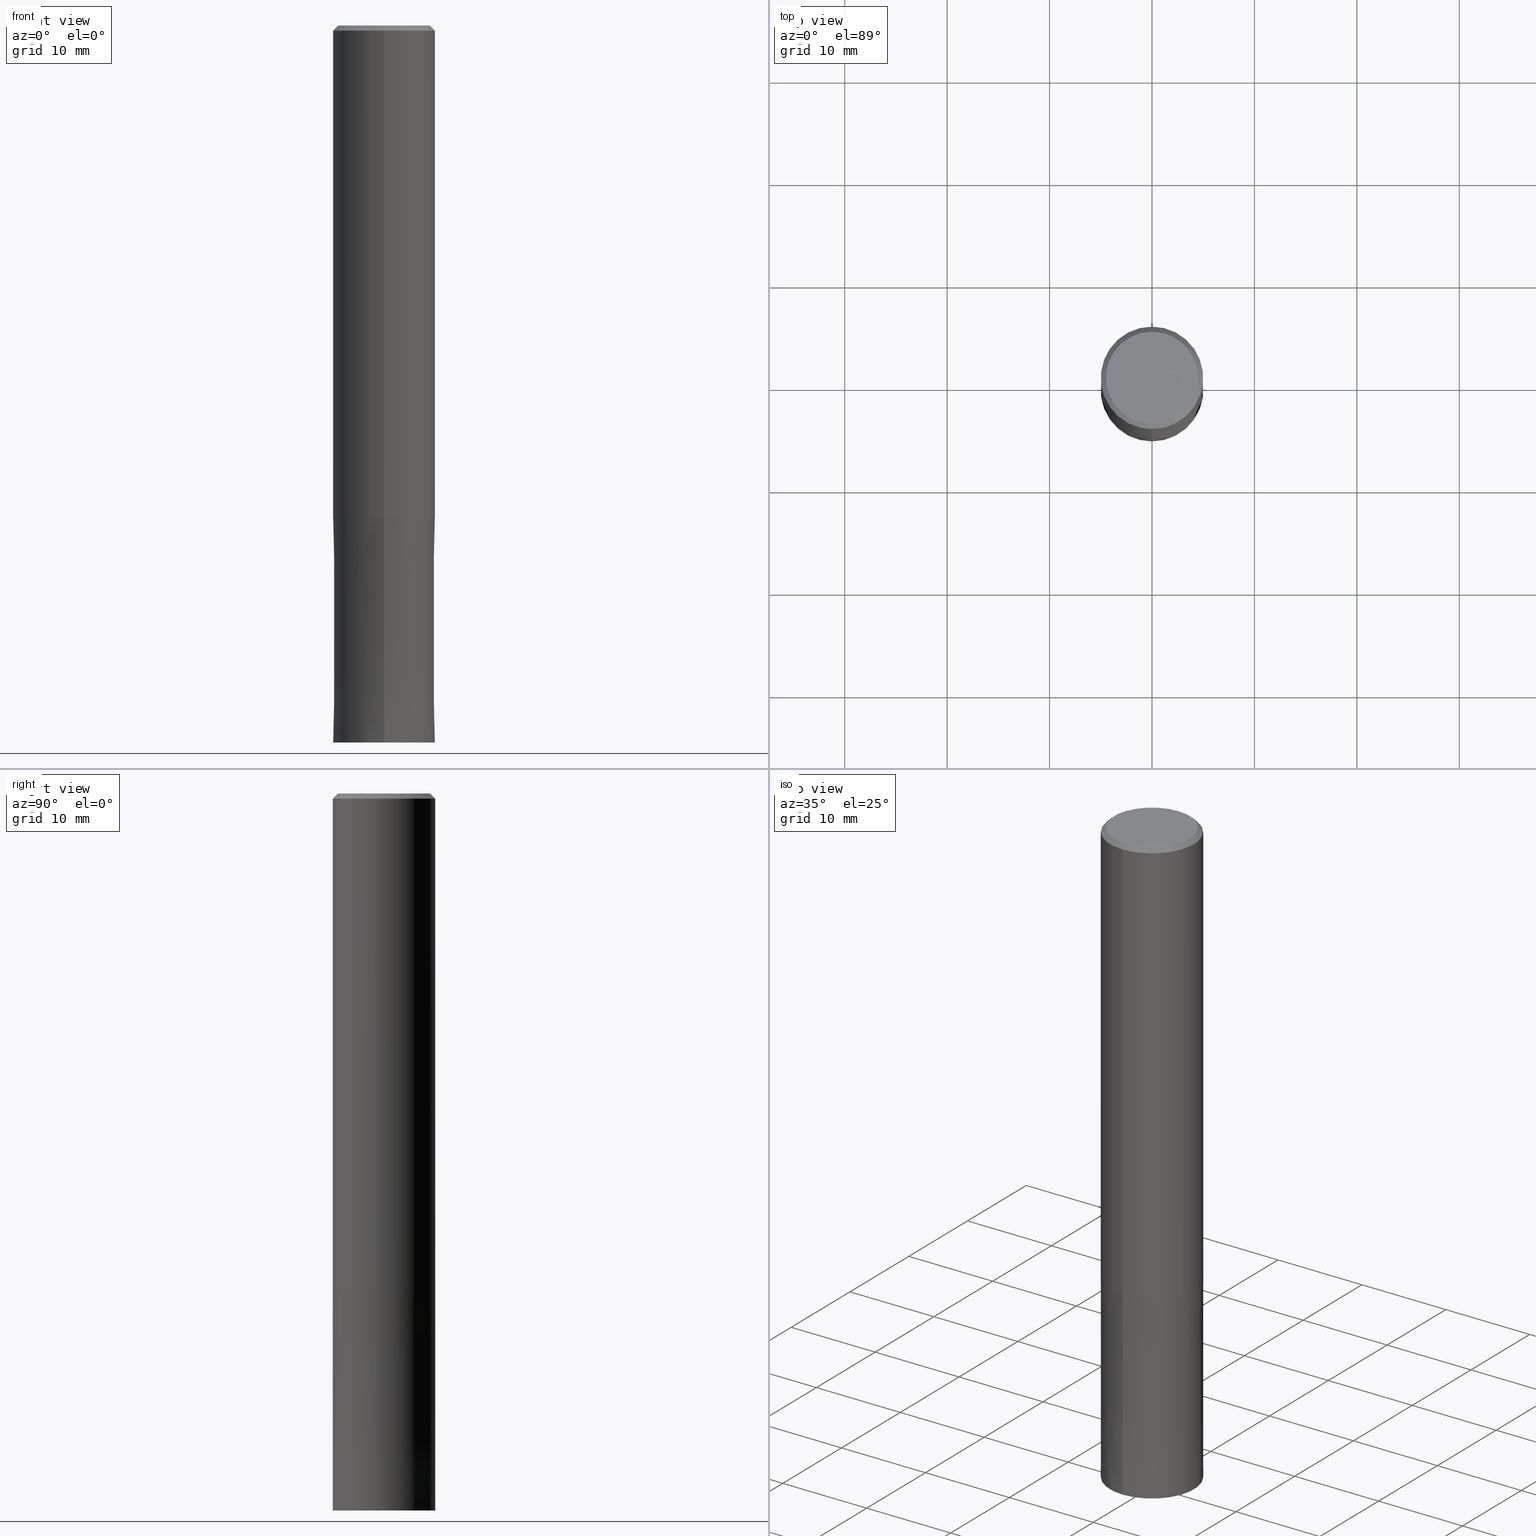
[diagram: canonical four-view strip — front | top / right | iso, engineering-drawing reading convention]
A machine part, canonical four-view strip (front | top / right | iso — engineering-drawing reading convention). The complete STEP part file that produces these views, byte-faithful:
ISO-10303-21;
HEADER;
FILE_DESCRIPTION(('no description'),'unknown implementation level');
FILE_NAME('HMS6100-2200-Huellk.stp','  ',('CIMSOURCE GmbH'),('CADClick - KiM GmbH - www.kimweb.de'),'unknown preprocess','ACIS','unknown authorization');
FILE_SCHEMA(('automotive_design'));
ENDSEC;
DATA;
#1=MECHANICAL_DESIGN_GEOMETRIC_PRESENTATION_REPRESENTATION(' ',(#14,#15,#16,#17,#18,#19,#20,#21,#22,#23,#24,#25,#26,#27,#28,#29,#30,#31,#32,#33,#34,#35,#36,#37,#38,#39,#40,#41,#42,#43,#44,#45,#46,#47,#48,#49,#50,#51,#52,#53,#54,#55,#56,#57,#58,#59,#60,#61,#62,#63,#64,#65,#66,#67,#68,#69,#70,#71,#72,#73,#74,#75,#76),#10);
#2=PRODUCT_DEFINITION_CONTEXT('',#77,'design');
#3=APPLICATION_PROTOCOL_DEFINITION('INTERNATIONAL STANDARD','automotive_design',1994,#77);
#4=PRODUCT_CATEGORY_RELATIONSHIP('NONE','NONE',#78,#79);
#5=SHAPE_DEFINITION_REPRESENTATION(#80,#81);
#6=PRODUCT_DEFINITION_CONTEXT('',#82,'design');
#7=APPLICATION_PROTOCOL_DEFINITION('INTERNATIONAL STANDARD','automotive_design',1994,#82);
#8=PRODUCT_CATEGORY_RELATIONSHIP('NONE','NONE',#83,#84);
#9=SHAPE_DEFINITION_REPRESENTATION(#85,#86);
#10= (GEOMETRIC_REPRESENTATION_CONTEXT(3)GLOBAL_UNCERTAINTY_ASSIGNED_CONTEXT((#89))GLOBAL_UNIT_ASSIGNED_CONTEXT((#91,#92,#93))REPRESENTATION_CONTEXT('NONE','WORKSPACE'));
#14=STYLED_ITEM('',(#95),#96);
#15=STYLED_ITEM('',(#97),#98);
#16=STYLED_ITEM('',(#99),#100);
#17=STYLED_ITEM('',(#101),#102);
#18=STYLED_ITEM('',(#103),#104);
#19=STYLED_ITEM('',(#105),#106);
#20=STYLED_ITEM('',(#107),#108);
#21=STYLED_ITEM('',(#109),#110);
#22=STYLED_ITEM('',(#111),#112);
#23=STYLED_ITEM('',(#113),#114);
#24=STYLED_ITEM('',(#115),#116);
#25=STYLED_ITEM('',(#117),#118);
#26=STYLED_ITEM('',(#119),#120);
#27=STYLED_ITEM('',(#121),#122);
#28=STYLED_ITEM('',(#123),#124);
#29=STYLED_ITEM('',(#125),#126);
#30=STYLED_ITEM('',(#127),#128);
#31=STYLED_ITEM('',(#129),#130);
#32=STYLED_ITEM('',(#131),#132);
#33=STYLED_ITEM('',(#133),#134);
#34=STYLED_ITEM('',(#135),#136);
#35=STYLED_ITEM('',(#137),#138);
#36=STYLED_ITEM('',(#139),#140);
#37=STYLED_ITEM('',(#141),#142);
#38=STYLED_ITEM('',(#143),#144);
#39=STYLED_ITEM('',(#145),#146);
#40=STYLED_ITEM('',(#147),#148);
#41=STYLED_ITEM('',(#149),#150);
#42=STYLED_ITEM('',(#151),#152);
#43=STYLED_ITEM('',(#153),#154);
#44=STYLED_ITEM('',(#155),#156);
#45=STYLED_ITEM('',(#157),#158);
#46=STYLED_ITEM('',(#159),#160);
#47=STYLED_ITEM('',(#161),#162);
#48=STYLED_ITEM('',(#163),#164);
#49=STYLED_ITEM('',(#165),#166);
#50=STYLED_ITEM('',(#167),#168);
#51=STYLED_ITEM('',(#169),#170);
#52=STYLED_ITEM('',(#171),#172);
#53=STYLED_ITEM('',(#173),#174);
#54=STYLED_ITEM('',(#175),#176);
#55=STYLED_ITEM('',(#177),#178);
#56=STYLED_ITEM('',(#179),#180);
#57=STYLED_ITEM('',(#181),#182);
#58=STYLED_ITEM('',(#183),#184);
#59=STYLED_ITEM('',(#185),#186);
#60=STYLED_ITEM('',(#187),#188);
#61=STYLED_ITEM('',(#189),#190);
#62=STYLED_ITEM('',(#191),#192);
#63=STYLED_ITEM('',(#193),#194);
#64=STYLED_ITEM('',(#195),#196);
#65=STYLED_ITEM('',(#197),#198);
#66=STYLED_ITEM('',(#199),#200);
#67=STYLED_ITEM('',(#201),#202);
#68=STYLED_ITEM('',(#203),#204);
#69=STYLED_ITEM('',(#205),#206);
#70=STYLED_ITEM('',(#207),#208);
#71=STYLED_ITEM('',(#209),#210);
#72=STYLED_ITEM('',(#211),#212);
#73=STYLED_ITEM('',(#213),#214);
#74=STYLED_ITEM('',(#215),#216);
#75=STYLED_ITEM('',(#217),#218);
#76=STYLED_ITEM('',(#219),#220);
#77=APPLICATION_CONTEXT(' ');
#78=PRODUCT_CATEGORY('part','NONE');
#79=PRODUCT_RELATED_PRODUCT_CATEGORY('detail',' ',(#221));
#80=PRODUCT_DEFINITION_SHAPE('NONE','NONE',#222);
#81=ADVANCED_BREP_SHAPE_REPRESENTATION('1',(#192,#223),#10);
#82=APPLICATION_CONTEXT(' ');
#83=PRODUCT_CATEGORY('part','NONE');
#84=PRODUCT_RELATED_PRODUCT_CATEGORY('detail',' ',(#224));
#85=PRODUCT_DEFINITION_SHAPE('NONE','NONE',#225);
#86=ADVANCED_BREP_SHAPE_REPRESENTATION('2',(#96,#226),#10);
#89=UNCERTAINTY_MEASURE_WITH_UNIT(LENGTH_MEASURE(1.0E-006),#91,'','');
#91= (CONVERSION_BASED_UNIT('MILLIMETRE',#229)LENGTH_UNIT()NAMED_UNIT(#232));
#92= (NAMED_UNIT(#234)PLANE_ANGLE_UNIT()SI_UNIT($,.RADIAN.));
#93= (NAMED_UNIT(#234)SOLID_ANGLE_UNIT()SI_UNIT($,.STERADIAN.));
#95=PRESENTATION_STYLE_ASSIGNMENT((#240));
#96=MANIFOLD_SOLID_BREP('2',#241);
#97=PRESENTATION_STYLE_ASSIGNMENT((#242));
#98=VERTEX_POINT('',#243);
#99=PRESENTATION_STYLE_ASSIGNMENT((#244));
#100=EDGE_CURVE('',#172,#166,#245,.T.);
#101=PRESENTATION_STYLE_ASSIGNMENT((#246));
#102=EDGE_CURVE('',#160,#210,#247,.T.);
#103=PRESENTATION_STYLE_ASSIGNMENT((#248));
#104=ADVANCED_FACE('',(#249),#250,.T.);
#105=PRESENTATION_STYLE_ASSIGNMENT((#251));
#106=ADVANCED_FACE('',(#252),#253,.T.);
#107=PRESENTATION_STYLE_ASSIGNMENT((#254));
#108=VERTEX_POINT('',#255);
#109=PRESENTATION_STYLE_ASSIGNMENT((#256));
#110=ADVANCED_FACE('',(#257,#258),#259,.T.);
#111=PRESENTATION_STYLE_ASSIGNMENT((#260));
#112=EDGE_CURVE('',#98,#122,#261,.T.);
#113=PRESENTATION_STYLE_ASSIGNMENT((#262));
#114=EDGE_CURVE('',#174,#210,#263,.T.);
#115=PRESENTATION_STYLE_ASSIGNMENT((#264));
#116=EDGE_CURVE('',#148,#146,#265,.T.);
#117=PRESENTATION_STYLE_ASSIGNMENT((#266));
#118=EDGE_CURVE('',#174,#206,#267,.T.);
#119=PRESENTATION_STYLE_ASSIGNMENT((#268));
#120=EDGE_CURVE('',#186,#166,#269,.T.);
#121=PRESENTATION_STYLE_ASSIGNMENT((#270));
#122=VERTEX_POINT('',#271);
#123=PRESENTATION_STYLE_ASSIGNMENT((#272));
#124=ADVANCED_FACE('',(#273),#274,.T.);
#125=PRESENTATION_STYLE_ASSIGNMENT((#275));
#126=EDGE_CURVE('',#160,#206,#276,.T.);
#127=PRESENTATION_STYLE_ASSIGNMENT((#277));
#128=ADVANCED_FACE('',(#278),#279,.T.);
#129=PRESENTATION_STYLE_ASSIGNMENT((#280));
#130=VERTEX_POINT('',#281);
#131=PRESENTATION_STYLE_ASSIGNMENT((#282));
#132=ADVANCED_FACE('',(#283),#284,.F.);
#133=PRESENTATION_STYLE_ASSIGNMENT((#285));
#134=EDGE_CURVE('',#208,#186,#286,.T.);
#135=PRESENTATION_STYLE_ASSIGNMENT((#287));
#136=EDGE_CURVE('',#202,#108,#288,.T.);
#137=PRESENTATION_STYLE_ASSIGNMENT((#289));
#138=EDGE_CURVE('',#146,#172,#290,.T.);
#139=PRESENTATION_STYLE_ASSIGNMENT((#291));
#140=ADVANCED_FACE('',(#292),#293,.T.);
#141=PRESENTATION_STYLE_ASSIGNMENT((#294));
#142=ADVANCED_FACE('',(#295),#296,.T.);
#143=PRESENTATION_STYLE_ASSIGNMENT((#297));
#144=EDGE_CURVE('',#172,#208,#298,.T.);
#145=PRESENTATION_STYLE_ASSIGNMENT((#299));
#146=VERTEX_POINT('',#300);
#147=PRESENTATION_STYLE_ASSIGNMENT((#301));
#148=VERTEX_POINT('',#302);
#149=PRESENTATION_STYLE_ASSIGNMENT((#303));
#150=ADVANCED_FACE('',(#304),#305,.F.);
#151=PRESENTATION_STYLE_ASSIGNMENT((#306));
#152=EDGE_CURVE('',#122,#216,#307,.T.);
#153=PRESENTATION_STYLE_ASSIGNMENT((#308));
#154=ADVANCED_FACE('',(#309,#310),#311,.T.);
#155=PRESENTATION_STYLE_ASSIGNMENT((#312));
#156=EDGE_CURVE('',#98,#188,#313,.T.);
#157=PRESENTATION_STYLE_ASSIGNMENT((#314));
#158=ADVANCED_FACE('',(#315,#316),#317,.T.);
#159=PRESENTATION_STYLE_ASSIGNMENT((#318));
#160=VERTEX_POINT('',#319);
#161=PRESENTATION_STYLE_ASSIGNMENT((#320));
#162=EDGE_CURVE('',#130,#202,#321,.T.);
#163=PRESENTATION_STYLE_ASSIGNMENT((#322));
#164=EDGE_CURVE('',#210,#160,#323,.T.);
#165=PRESENTATION_STYLE_ASSIGNMENT((#324));
#166=VERTEX_POINT('',#325);
#167=PRESENTATION_STYLE_ASSIGNMENT((#326));
#168=EDGE_CURVE('',#166,#172,#327,.T.);
#169=PRESENTATION_STYLE_ASSIGNMENT((#328));
#170=ADVANCED_FACE('',(#329),#330,.T.);
#171=PRESENTATION_STYLE_ASSIGNMENT((#331));
#172=VERTEX_POINT('',#332);
#173=PRESENTATION_STYLE_ASSIGNMENT((#333));
#174=VERTEX_POINT('',#334);
#175=PRESENTATION_STYLE_ASSIGNMENT((#335));
#176=EDGE_CURVE('',#108,#202,#336,.T.);
#177=PRESENTATION_STYLE_ASSIGNMENT((#337));
#178=ADVANCED_FACE('',(#338),#339,.T.);
#179=PRESENTATION_STYLE_ASSIGNMENT((#340));
#180=ADVANCED_FACE('',(#341),#342,.T.);
#181=PRESENTATION_STYLE_ASSIGNMENT((#343));
#182=EDGE_CURVE('',#166,#148,#344,.T.);
#183=PRESENTATION_STYLE_ASSIGNMENT((#345));
#184=EDGE_CURVE('',#216,#122,#346,.T.);
#185=PRESENTATION_STYLE_ASSIGNMENT((#347));
#186=VERTEX_POINT('',#348);
#187=PRESENTATION_STYLE_ASSIGNMENT((#349));
#188=VERTEX_POINT('',#350);
#189=PRESENTATION_STYLE_ASSIGNMENT((#351));
#190=EDGE_CURVE('',#108,#198,#352,.T.);
#191=PRESENTATION_STYLE_ASSIGNMENT((#353));
#192=MANIFOLD_SOLID_BREP('1',#354);
#193=PRESENTATION_STYLE_ASSIGNMENT((#355));
#194=EDGE_CURVE('',#186,#208,#356,.T.);
#195=PRESENTATION_STYLE_ASSIGNMENT((#357));
#196=EDGE_CURVE('',#188,#98,#358,.T.);
#197=PRESENTATION_STYLE_ASSIGNMENT((#359));
#198=VERTEX_POINT('',#360);
#199=PRESENTATION_STYLE_ASSIGNMENT((#361));
#200=EDGE_CURVE('',#198,#130,#362,.T.);
#201=PRESENTATION_STYLE_ASSIGNMENT((#363));
#202=VERTEX_POINT('',#364);
#203=PRESENTATION_STYLE_ASSIGNMENT((#365));
#204=EDGE_CURVE('',#146,#148,#366,.T.);
#205=PRESENTATION_STYLE_ASSIGNMENT((#367));
#206=VERTEX_POINT('',#368);
#207=PRESENTATION_STYLE_ASSIGNMENT((#369));
#208=VERTEX_POINT('',#370);
#209=PRESENTATION_STYLE_ASSIGNMENT((#371));
#210=VERTEX_POINT('',#372);
#211=PRESENTATION_STYLE_ASSIGNMENT((#373));
#212=EDGE_CURVE('',#206,#174,#374,.T.);
#213=PRESENTATION_STYLE_ASSIGNMENT((#375));
#214=ADVANCED_FACE('',(#376),#377,.T.);
#215=PRESENTATION_STYLE_ASSIGNMENT((#378));
#216=VERTEX_POINT('',#379);
#217=PRESENTATION_STYLE_ASSIGNMENT((#380));
#218=EDGE_CURVE('',#216,#188,#381,.T.);
#219=PRESENTATION_STYLE_ASSIGNMENT((#382));
#220=EDGE_CURVE('',#130,#198,#383,.T.);
#221=PRODUCT('1','1','PART-1-DESC',(#384));
#222=PRODUCT_DEFINITION('NONE','NONE',#385,#2);
#223=AXIS2_PLACEMENT_3D('',#386,#387,#388);
#224=PRODUCT('2','2','PART-2-DESC',(#389));
#225=PRODUCT_DEFINITION('NONE','NONE',#390,#6);
#226=AXIS2_PLACEMENT_3D('',#391,#392,#393);
#229=LENGTH_MEASURE_WITH_UNIT(LENGTH_MEASURE(1.0),#394);
#232=DIMENSIONAL_EXPONENTS(1.0,0.0,0.0,0.0,0.0,0.0,0.0);
#234=DIMENSIONAL_EXPONENTS(0.0,0.0,0.0,0.0,0.0,0.0,0.0);
#240=SURFACE_STYLE_USAGE(.BOTH.,#395);
#241=CLOSED_SHELL('',(#150,#124,#154,#128,#158,#132));
#242=POINT_STYLE(' ',#396,POSITIVE_LENGTH_MEASURE(1.0E-006),#397);
#243=CARTESIAN_POINT('',(2.75536429610035E-016,-2.25,-69.8));
#244=CURVE_STYLE('',#398,POSITIVE_LENGTH_MEASURE(1.0E-006),#399);
#245=CIRCLE('',#400,5.0);
#246=CURVE_STYLE('',#401,POSITIVE_LENGTH_MEASURE(1.0E-006),#402);
#247=CIRCLE('',#403,5.0);
#248=SURFACE_STYLE_USAGE(.BOTH.,#404);
#249=FACE_OUTER_BOUND('',#405,.T.);
#250=PLANE('',#406);
#251=SURFACE_STYLE_USAGE(.BOTH.,#407);
#252=FACE_OUTER_BOUND('',#408,.T.);
#253=CYLINDRICAL_SURFACE('',#409,2.25);
#254=POINT_STYLE(' ',#410,POSITIVE_LENGTH_MEASURE(1.0E-006),#411);
#255=CARTESIAN_POINT('',(0.0,2.25,-48.0));
#256=SURFACE_STYLE_USAGE(.BOTH.,#412);
#257=FACE_OUTER_BOUND('',#413,.T.);
#258=FACE_BOUND('',#414,.T.);
#259=PLANE('',#415);
#260=CURVE_STYLE('',#416,POSITIVE_LENGTH_MEASURE(1.0E-006),#417);
#261=LINE('',#418,#419);
#262=CURVE_STYLE('',#420,POSITIVE_LENGTH_MEASURE(1.0E-006),#421);
#263=LINE('',#422,#423);
#264=CURVE_STYLE('',#424,POSITIVE_LENGTH_MEASURE(1.0E-006),#425);
#265=CIRCLE('',#426,5.0);
#266=CURVE_STYLE('',#427,POSITIVE_LENGTH_MEASURE(1.0E-006),#428);
#267=CIRCLE('',#429,4.9999);
#268=CURVE_STYLE('',#430,POSITIVE_LENGTH_MEASURE(1.0E-006),#431);
#269=LINE('',#432,#433);
#270=POINT_STYLE(' ',#434,POSITIVE_LENGTH_MEASURE(1.0E-006),#435);
#271=CARTESIAN_POINT('',(2.75536429610035E-016,-2.25,-48.0));
#272=SURFACE_STYLE_USAGE(.BOTH.,#436);
#273=FACE_OUTER_BOUND('',#437,.T.);
#274=CONICAL_SURFACE('',#438,4.99995,4.54545454541265E-006);
#275=CURVE_STYLE('',#439,POSITIVE_LENGTH_MEASURE(1.0E-006),#440);
#276=LINE('',#441,#442);
#277=SURFACE_STYLE_USAGE(.BOTH.,#443);
#278=FACE_OUTER_BOUND('',#444,.T.);
#279=CONICAL_SURFACE('',#445,4.99995,4.54545454541265E-006);
#280=POINT_STYLE(' ',#446,POSITIVE_LENGTH_MEASURE(1.0E-006),#447);
#281=CARTESIAN_POINT('',(2.75536429610035E-016,-2.25,-70.0));
#282=SURFACE_STYLE_USAGE(.BOTH.,#448);
#283=FACE_OUTER_BOUND('',#449,.T.);
#284=CYLINDRICAL_SURFACE('',#450,2.25);
#285=CURVE_STYLE('',#451,POSITIVE_LENGTH_MEASURE(1.0E-006),#452);
#286=CIRCLE('',#453,4.5);
#287=CURVE_STYLE('',#454,POSITIVE_LENGTH_MEASURE(1.0E-006),#455);
#288=CIRCLE('',#456,2.25);
#289=CURVE_STYLE('',#457,POSITIVE_LENGTH_MEASURE(1.0E-006),#458);
#290=LINE('',#459,#460);
#291=SURFACE_STYLE_USAGE(.BOTH.,#461);
#292=FACE_OUTER_BOUND('',#462,.T.);
#293=PLANE('',#463);
#294=SURFACE_STYLE_USAGE(.BOTH.,#464);
#295=FACE_OUTER_BOUND('',#465,.T.);
#296=CONICAL_SURFACE('',#466,4.75,0.785398163397448);
#297=CURVE_STYLE('',#467,POSITIVE_LENGTH_MEASURE(1.0E-006),#468);
#298=LINE('',#469,#470);
#299=POINT_STYLE(' ',#471,POSITIVE_LENGTH_MEASURE(1.0E-006),#472);
#300=CARTESIAN_POINT('',(6.12303176911189E-016,-5.0,-48.0));
#301=POINT_STYLE(' ',#473,POSITIVE_LENGTH_MEASURE(1.0E-006),#474);
#302=CARTESIAN_POINT('',(0.0,5.0,-48.0));
#303=SURFACE_STYLE_USAGE(.BOTH.,#475);
#304=FACE_OUTER_BOUND('',#476,.T.);
#305=CYLINDRICAL_SURFACE('',#477,2.25);
#306=CURVE_STYLE('',#478,POSITIVE_LENGTH_MEASURE(1.0E-006),#479);
#307=CIRCLE('',#480,2.25);
#308=SURFACE_STYLE_USAGE(.BOTH.,#481);
#309=FACE_OUTER_BOUND('',#482,.T.);
#310=FACE_BOUND('',#483,.T.);
#311=PLANE('',#484);
#312=CURVE_STYLE('',#485,POSITIVE_LENGTH_MEASURE(1.0E-006),#486);
#313=CIRCLE('',#487,2.25);
#314=SURFACE_STYLE_USAGE(.BOTH.,#488);
#315=FACE_OUTER_BOUND('',#489,.T.);
#316=FACE_BOUND('',#490,.T.);
#317=PLANE('',#491);
#318=POINT_STYLE(' ',#492,POSITIVE_LENGTH_MEASURE(1.0E-006),#493);
#319=CARTESIAN_POINT('',(6.12303176911189E-016,-5.0,-70.0));
#320=CURVE_STYLE('',#494,POSITIVE_LENGTH_MEASURE(1.0E-006),#495);
#321=LINE('',#496,#497);
#322=CURVE_STYLE('',#498,POSITIVE_LENGTH_MEASURE(1.0E-006),#499);
#323=CIRCLE('',#500,5.0);
#324=POINT_STYLE(' ',#501,POSITIVE_LENGTH_MEASURE(1.0E-006),#502);
#325=CARTESIAN_POINT('',(0.0,5.0,-0.5));
#326=CURVE_STYLE('',#503,POSITIVE_LENGTH_MEASURE(1.0E-006),#504);
#327=CIRCLE('',#505,5.0);
#328=SURFACE_STYLE_USAGE(.BOTH.,#506);
#329=FACE_OUTER_BOUND('',#507,.T.);
#330=CYLINDRICAL_SURFACE('',#508,5.0);
#331=POINT_STYLE(' ',#509,POSITIVE_LENGTH_MEASURE(1.0E-006),#510);
#332=CARTESIAN_POINT('',(6.12303176911189E-016,-5.0,-0.5));
#333=POINT_STYLE(' ',#511,POSITIVE_LENGTH_MEASURE(1.0E-006),#512);
#334=CARTESIAN_POINT('',(0.0,4.9999,-48.0));
#335=CURVE_STYLE('',#513,POSITIVE_LENGTH_MEASURE(1.0E-006),#514);
#336=CIRCLE('',#515,2.25);
#337=SURFACE_STYLE_USAGE(.BOTH.,#516);
#338=FACE_OUTER_BOUND('',#517,.T.);
#339=CONICAL_SURFACE('',#518,4.75,0.785398163397448);
#340=SURFACE_STYLE_USAGE(.BOTH.,#519);
#341=FACE_OUTER_BOUND('',#520,.T.);
#342=CYLINDRICAL_SURFACE('',#521,2.25);
#343=CURVE_STYLE('',#522,POSITIVE_LENGTH_MEASURE(1.0E-006),#523);
#344=LINE('',#524,#525);
#345=CURVE_STYLE('',#526,POSITIVE_LENGTH_MEASURE(1.0E-006),#527);
#346=CIRCLE('',#528,2.25);
#347=POINT_STYLE(' ',#529,POSITIVE_LENGTH_MEASURE(1.0E-006),#530);
#348=CARTESIAN_POINT('',(0.0,4.5,0.0));
#349=POINT_STYLE(' ',#531,POSITIVE_LENGTH_MEASURE(1.0E-006),#532);
#350=CARTESIAN_POINT('',(0.0,2.25,-69.8));
#351=CURVE_STYLE('',#533,POSITIVE_LENGTH_MEASURE(1.0E-006),#534);
#352=LINE('',#535,#536);
#353=SURFACE_STYLE_USAGE(.BOTH.,#537);
#354=CLOSED_SHELL('',(#106,#170,#178,#110,#140,#142,#214,#180,#104));
#355=CURVE_STYLE('',#538,POSITIVE_LENGTH_MEASURE(1.0E-006),#539);
#356=CIRCLE('',#540,4.5);
#357=CURVE_STYLE('',#541,POSITIVE_LENGTH_MEASURE(1.0E-006),#542);
#358=CIRCLE('',#543,2.25);
#359=POINT_STYLE(' ',#544,POSITIVE_LENGTH_MEASURE(1.0E-006),#545);
#360=CARTESIAN_POINT('',(0.0,2.25,-70.0));
#361=CURVE_STYLE('',#546,POSITIVE_LENGTH_MEASURE(1.0E-006),#547);
#362=CIRCLE('',#548,2.25);
#363=POINT_STYLE(' ',#549,POSITIVE_LENGTH_MEASURE(1.0E-006),#550);
#364=CARTESIAN_POINT('',(2.75536429610035E-016,-2.25,-48.0));
#365=CURVE_STYLE('',#551,POSITIVE_LENGTH_MEASURE(1.0E-006),#552);
#366=CIRCLE('',#553,5.0);
#367=POINT_STYLE(' ',#554,POSITIVE_LENGTH_MEASURE(1.0E-006),#555);
#368=CARTESIAN_POINT('',(6.1229093084765E-016,-4.9999,-48.0));
#369=POINT_STYLE(' ',#556,POSITIVE_LENGTH_MEASURE(1.0E-006),#557);
#370=CARTESIAN_POINT('',(5.5107285922007E-016,-4.5,0.0));
#371=POINT_STYLE(' ',#558,POSITIVE_LENGTH_MEASURE(1.0E-006),#559);
#372=CARTESIAN_POINT('',(0.0,5.0,-70.0));
#373=CURVE_STYLE('',#560,POSITIVE_LENGTH_MEASURE(1.0E-006),#561);
#374=CIRCLE('',#562,4.9999);
#375=SURFACE_STYLE_USAGE(.BOTH.,#563);
#376=FACE_OUTER_BOUND('',#564,.T.);
#377=CYLINDRICAL_SURFACE('',#565,5.0);
#378=POINT_STYLE(' ',#566,POSITIVE_LENGTH_MEASURE(1.0E-006),#567);
#379=CARTESIAN_POINT('',(0.0,2.25,-48.0));
#380=CURVE_STYLE('',#568,POSITIVE_LENGTH_MEASURE(1.0E-006),#569);
#381=LINE('',#570,#571);
#382=CURVE_STYLE('',#572,POSITIVE_LENGTH_MEASURE(1.0E-006),#573);
#383=CIRCLE('',#574,2.25);
#384=PRODUCT_CONTEXT('',#77,'mechanical');
#385=PRODUCT_DEFINITION_FORMATION_WITH_SPECIFIED_SOURCE(' ','NONE',#221,.NOT_KNOWN.);
#386=CARTESIAN_POINT('',(0.0,0.0,0.0));
#387=DIRECTION('',(0.0,0.0,1.0));
#388=DIRECTION('',(1.0,0.0,0.0));
#389=PRODUCT_CONTEXT('',#82,'mechanical');
#390=PRODUCT_DEFINITION_FORMATION_WITH_SPECIFIED_SOURCE(' ','NONE',#224,.NOT_KNOWN.);
#391=CARTESIAN_POINT('',(0.0,0.0,0.0));
#392=DIRECTION('',(0.0,0.0,1.0));
#393=DIRECTION('',(1.0,0.0,0.0));
#394= (NAMED_UNIT(#232)LENGTH_UNIT()SI_UNIT(.MILLI.,.METRE.));
#395=SURFACE_SIDE_STYLE('',(#576));
#396=PRE_DEFINED_MARKER('');
#397=COLOUR_RGB('',0.498039215803146,0.498039215803146,0.498039215803146);
#398=DRAUGHTING_PRE_DEFINED_CURVE_FONT('continuous');
#399=COLOUR_RGB('',0.498039215803146,0.498039215803146,0.498039215803146);
#400=AXIS2_PLACEMENT_3D('',#577,#578,#579);
#401=DRAUGHTING_PRE_DEFINED_CURVE_FONT('continuous');
#402=COLOUR_RGB('',0.800000011920929,0.800000011920929,0.800000011920929);
#403=AXIS2_PLACEMENT_3D('',#580,#581,#582);
#404=SURFACE_SIDE_STYLE('',(#583));
#405=EDGE_LOOP('',(#584,#585));
#406=AXIS2_PLACEMENT_3D('',#586,#587,#588);
#407=SURFACE_SIDE_STYLE('',(#589));
#408=EDGE_LOOP('',(#590,#591,#592,#593));
#409=AXIS2_PLACEMENT_3D('',#594,#595,#596);
#410=PRE_DEFINED_MARKER('');
#411=COLOUR_RGB('',0.800000011920929,0.800000011920929,0.800000011920929);
#412=SURFACE_SIDE_STYLE('',(#597));
#413=EDGE_LOOP('',(#598,#599));
#414=EDGE_LOOP('',(#600,#601));
#415=AXIS2_PLACEMENT_3D('',#602,#603,#604);
#416=DRAUGHTING_PRE_DEFINED_CURVE_FONT('continuous');
#417=COLOUR_RGB('',0.498039215803146,0.498039215803146,0.498039215803146);
#418=CARTESIAN_POINT('',(2.75536429610035E-016,-2.25,-58.9));
#419=VECTOR('',#605,1.0);
#420=DRAUGHTING_PRE_DEFINED_CURVE_FONT('continuous');
#421=COLOUR_RGB('',0.800000011920929,0.800000011920929,0.800000011920929);
#422=CARTESIAN_POINT('',(-6.12297053879419E-016,4.99995,-59.0));
#423=VECTOR('',#606,1.0);
#424=DRAUGHTING_PRE_DEFINED_CURVE_FONT('continuous');
#425=COLOUR_RGB('',0.498039215803146,0.498039215803146,0.498039215803146);
#426=AXIS2_PLACEMENT_3D('',#607,#608,#609);
#427=DRAUGHTING_PRE_DEFINED_CURVE_FONT('continuous');
#428=COLOUR_RGB('',0.800000011920929,0.800000011920929,0.800000011920929);
#429=AXIS2_PLACEMENT_3D('',#610,#611,#612);
#430=DRAUGHTING_PRE_DEFINED_CURVE_FONT('continuous');
#431=COLOUR_RGB('',0.498039215803146,0.498039215803146,0.498039215803146);
#432=CARTESIAN_POINT('',(-5.81688018065629E-016,4.75,-0.25));
#433=VECTOR('',#613,1.0);
#434=PRE_DEFINED_MARKER('');
#435=COLOUR_RGB('',0.498039215803146,0.498039215803146,0.498039215803146);
#436=SURFACE_SIDE_STYLE('',(#614));
#437=EDGE_LOOP('',(#615,#616,#617,#618));
#438=AXIS2_PLACEMENT_3D('',#619,#620,#621);
#439=DRAUGHTING_PRE_DEFINED_CURVE_FONT('continuous');
#440=COLOUR_RGB('',0.800000011920929,0.800000011920929,0.800000011920929);
#441=CARTESIAN_POINT('',(6.12297053879419E-016,-4.99995,-59.0));
#442=VECTOR('',#622,1.0);
#443=SURFACE_SIDE_STYLE('',(#623));
#444=EDGE_LOOP('',(#624,#625,#626,#627));
#445=AXIS2_PLACEMENT_3D('',#628,#629,#630);
#446=PRE_DEFINED_MARKER('');
#447=COLOUR_RGB('',0.800000011920929,0.800000011920929,0.800000011920929);
#448=SURFACE_SIDE_STYLE('',(#631));
#449=EDGE_LOOP('',(#632,#633,#634,#635));
#450=AXIS2_PLACEMENT_3D('',#636,#637,#638);
#451=DRAUGHTING_PRE_DEFINED_CURVE_FONT('continuous');
#452=COLOUR_RGB('',0.498039215803146,0.498039215803146,0.498039215803146);
#453=AXIS2_PLACEMENT_3D('',#639,#640,#641);
#454=DRAUGHTING_PRE_DEFINED_CURVE_FONT('continuous');
#455=COLOUR_RGB('',0.800000011920929,0.800000011920929,0.800000011920929);
#456=AXIS2_PLACEMENT_3D('',#642,#643,#644);
#457=DRAUGHTING_PRE_DEFINED_CURVE_FONT('continuous');
#458=COLOUR_RGB('',0.498039215803146,0.498039215803146,0.498039215803146);
#459=CARTESIAN_POINT('',(6.12303176911189E-016,-5.0,-24.25));
#460=VECTOR('',#645,1.0);
#461=SURFACE_SIDE_STYLE('',(#646));
#462=EDGE_LOOP('',(#647,#648));
#463=AXIS2_PLACEMENT_3D('',#649,#650,#651);
#464=SURFACE_SIDE_STYLE('',(#652));
#465=EDGE_LOOP('',(#653,#654,#655,#656));
#466=AXIS2_PLACEMENT_3D('',#657,#658,#659);
#467=DRAUGHTING_PRE_DEFINED_CURVE_FONT('continuous');
#468=COLOUR_RGB('',0.498039215803146,0.498039215803146,0.498039215803146);
#469=CARTESIAN_POINT('',(5.81688018065629E-016,-4.75,-0.25));
#470=VECTOR('',#660,1.0);
#471=PRE_DEFINED_MARKER('');
#472=COLOUR_RGB('',0.498039215803146,0.498039215803146,0.498039215803146);
#473=PRE_DEFINED_MARKER('');
#474=COLOUR_RGB('',0.498039215803146,0.498039215803146,0.498039215803146);
#475=SURFACE_SIDE_STYLE('',(#661));
#476=EDGE_LOOP('',(#662,#663,#664,#665));
#477=AXIS2_PLACEMENT_3D('',#666,#667,#668);
#478=DRAUGHTING_PRE_DEFINED_CURVE_FONT('continuous');
#479=COLOUR_RGB('',0.498039215803146,0.498039215803146,0.498039215803146);
#480=AXIS2_PLACEMENT_3D('',#669,#670,#671);
#481=SURFACE_SIDE_STYLE('',(#672));
#482=EDGE_LOOP('',(#673,#674));
#483=EDGE_LOOP('',(#675,#676));
#484=AXIS2_PLACEMENT_3D('',#677,#678,#679);
#485=DRAUGHTING_PRE_DEFINED_CURVE_FONT('continuous');
#486=COLOUR_RGB('',0.498039215803146,0.498039215803146,0.498039215803146);
#487=AXIS2_PLACEMENT_3D('',#680,#681,#682);
#488=SURFACE_SIDE_STYLE('',(#683));
#489=EDGE_LOOP('',(#684,#685));
#490=EDGE_LOOP('',(#686,#687));
#491=AXIS2_PLACEMENT_3D('',#688,#689,#690);
#492=PRE_DEFINED_MARKER('');
#493=COLOUR_RGB('',0.800000011920929,0.800000011920929,0.800000011920929);
#494=DRAUGHTING_PRE_DEFINED_CURVE_FONT('continuous');
#495=COLOUR_RGB('',0.800000011920929,0.800000011920929,0.800000011920929);
#496=CARTESIAN_POINT('',(2.75536429610035E-016,-2.25,-59.0));
#497=VECTOR('',#691,1.0);
#498=DRAUGHTING_PRE_DEFINED_CURVE_FONT('continuous');
#499=COLOUR_RGB('',0.800000011920929,0.800000011920929,0.800000011920929);
#500=AXIS2_PLACEMENT_3D('',#692,#693,#694);
#501=PRE_DEFINED_MARKER('');
#502=COLOUR_RGB('',0.498039215803146,0.498039215803146,0.498039215803146);
#503=DRAUGHTING_PRE_DEFINED_CURVE_FONT('continuous');
#504=COLOUR_RGB('',0.498039215803146,0.498039215803146,0.498039215803146);
#505=AXIS2_PLACEMENT_3D('',#695,#696,#697);
#506=SURFACE_SIDE_STYLE('',(#698));
#507=EDGE_LOOP('',(#699,#700,#701,#702));
#508=AXIS2_PLACEMENT_3D('',#703,#704,#705);
#509=PRE_DEFINED_MARKER('');
#510=COLOUR_RGB('',0.498039215803146,0.498039215803146,0.498039215803146);
#511=PRE_DEFINED_MARKER('');
#512=COLOUR_RGB('',0.800000011920929,0.800000011920929,0.800000011920929);
#513=DRAUGHTING_PRE_DEFINED_CURVE_FONT('continuous');
#514=COLOUR_RGB('',0.800000011920929,0.800000011920929,0.800000011920929);
#515=AXIS2_PLACEMENT_3D('',#706,#707,#708);
#516=SURFACE_SIDE_STYLE('',(#709));
#517=EDGE_LOOP('',(#710,#711,#712,#713));
#518=AXIS2_PLACEMENT_3D('',#714,#715,#716);
#519=SURFACE_SIDE_STYLE('',(#717));
#520=EDGE_LOOP('',(#718,#719,#720,#721));
#521=AXIS2_PLACEMENT_3D('',#722,#723,#724);
#522=DRAUGHTING_PRE_DEFINED_CURVE_FONT('continuous');
#523=COLOUR_RGB('',0.498039215803146,0.498039215803146,0.498039215803146);
#524=CARTESIAN_POINT('',(-6.12303176911189E-016,5.0,-24.25));
#525=VECTOR('',#725,1.0);
#526=DRAUGHTING_PRE_DEFINED_CURVE_FONT('continuous');
#527=COLOUR_RGB('',0.498039215803146,0.498039215803146,0.498039215803146);
#528=AXIS2_PLACEMENT_3D('',#726,#727,#728);
#529=PRE_DEFINED_MARKER('');
#530=COLOUR_RGB('',0.498039215803146,0.498039215803146,0.498039215803146);
#531=PRE_DEFINED_MARKER('');
#532=COLOUR_RGB('',0.498039215803146,0.498039215803146,0.498039215803146);
#533=DRAUGHTING_PRE_DEFINED_CURVE_FONT('continuous');
#534=COLOUR_RGB('',0.800000011920929,0.800000011920929,0.800000011920929);
#535=CARTESIAN_POINT('',(-2.75536429610035E-016,2.25,-59.0));
#536=VECTOR('',#729,1.0);
#537=SURFACE_SIDE_STYLE('',(#730));
#538=DRAUGHTING_PRE_DEFINED_CURVE_FONT('continuous');
#539=COLOUR_RGB('',0.498039215803146,0.498039215803146,0.498039215803146);
#540=AXIS2_PLACEMENT_3D('',#731,#732,#733);
#541=DRAUGHTING_PRE_DEFINED_CURVE_FONT('continuous');
#542=COLOUR_RGB('',0.498039215803146,0.498039215803146,0.498039215803146);
#543=AXIS2_PLACEMENT_3D('',#734,#735,#736);
#544=PRE_DEFINED_MARKER('');
#545=COLOUR_RGB('',0.800000011920929,0.800000011920929,0.800000011920929);
#546=DRAUGHTING_PRE_DEFINED_CURVE_FONT('continuous');
#547=COLOUR_RGB('',0.800000011920929,0.800000011920929,0.800000011920929);
#548=AXIS2_PLACEMENT_3D('',#737,#738,#739);
#549=PRE_DEFINED_MARKER('');
#550=COLOUR_RGB('',0.800000011920929,0.800000011920929,0.800000011920929);
#551=DRAUGHTING_PRE_DEFINED_CURVE_FONT('continuous');
#552=COLOUR_RGB('',0.498039215803146,0.498039215803146,0.498039215803146);
#553=AXIS2_PLACEMENT_3D('',#740,#741,#742);
#554=PRE_DEFINED_MARKER('');
#555=COLOUR_RGB('',0.800000011920929,0.800000011920929,0.800000011920929);
#556=PRE_DEFINED_MARKER('');
#557=COLOUR_RGB('',0.498039215803146,0.498039215803146,0.498039215803146);
#558=PRE_DEFINED_MARKER('');
#559=COLOUR_RGB('',0.800000011920929,0.800000011920929,0.800000011920929);
#560=DRAUGHTING_PRE_DEFINED_CURVE_FONT('continuous');
#561=COLOUR_RGB('',0.800000011920929,0.800000011920929,0.800000011920929);
#562=AXIS2_PLACEMENT_3D('',#743,#744,#745);
#563=SURFACE_SIDE_STYLE('',(#746));
#564=EDGE_LOOP('',(#747,#748,#749,#750));
#565=AXIS2_PLACEMENT_3D('',#751,#752,#753);
#566=PRE_DEFINED_MARKER('');
#567=COLOUR_RGB('',0.498039215803146,0.498039215803146,0.498039215803146);
#568=DRAUGHTING_PRE_DEFINED_CURVE_FONT('continuous');
#569=COLOUR_RGB('',0.498039215803146,0.498039215803146,0.498039215803146);
#570=CARTESIAN_POINT('',(-2.75536429610035E-016,2.25,-58.9));
#571=VECTOR('',#754,1.0);
#572=DRAUGHTING_PRE_DEFINED_CURVE_FONT('continuous');
#573=COLOUR_RGB('',0.800000011920929,0.800000011920929,0.800000011920929);
#574=AXIS2_PLACEMENT_3D('',#755,#756,#757);
#576=SURFACE_STYLE_FILL_AREA(#758);
#577=CARTESIAN_POINT('',(0.0,0.0,-0.5));
#578=DIRECTION('',(0.0,0.0,-1.0));
#579=DIRECTION('',(0.0,1.0,0.0));
#580=CARTESIAN_POINT('',(0.0,0.0,-70.0));
#581=DIRECTION('',(0.0,0.0,-1.0));
#582=DIRECTION('',(0.0,1.0,0.0));
#583=SURFACE_STYLE_FILL_AREA(#759);
#584=ORIENTED_EDGE('',*,*,#196,.T.);
#585=ORIENTED_EDGE('',*,*,#156,.T.);
#586=CARTESIAN_POINT('',(0.0,1.125,-69.8));
#587=DIRECTION('',(0.0,0.0,-1.0));
#588=DIRECTION('',(0.0,1.0,0.0));
#589=SURFACE_STYLE_FILL_AREA(#760);
#590=ORIENTED_EDGE('',*,*,#218,.F.);
#591=ORIENTED_EDGE('',*,*,#184,.T.);
#592=ORIENTED_EDGE('',*,*,#112,.F.);
#593=ORIENTED_EDGE('',*,*,#196,.F.);
#594=CARTESIAN_POINT('',(0.0,0.0,-58.9));
#595=DIRECTION('',(-0.0,-0.0,1.0));
#596=DIRECTION('',(0.0,1.0,0.0));
#597=SURFACE_STYLE_FILL_AREA(#761);
#598=ORIENTED_EDGE('',*,*,#116,.T.);
#599=ORIENTED_EDGE('',*,*,#204,.T.);
#600=ORIENTED_EDGE('',*,*,#184,.F.);
#601=ORIENTED_EDGE('',*,*,#152,.F.);
#602=CARTESIAN_POINT('',(0.0,2.5,-48.0));
#603=DIRECTION('',(0.0,0.0,-1.0));
#604=DIRECTION('',(0.0,1.0,0.0));
#605=DIRECTION('',(-0.0,-0.0,1.0));
#606=DIRECTION('',(-5.56639251730397E-022,4.545454545397E-006,-0.999999999989669));
#607=CARTESIAN_POINT('',(0.0,0.0,-48.0));
#608=DIRECTION('',(0.0,0.0,-1.0));
#609=DIRECTION('',(0.0,1.0,0.0));
#610=CARTESIAN_POINT('',(0.0,0.0,-48.0));
#611=DIRECTION('',(0.0,0.0,-1.0));
#612=DIRECTION('',(0.0,1.0,0.0));
#613=DIRECTION('',(-8.65927457071936E-017,0.707106781186548,-0.707106781186548));
#614=SURFACE_STYLE_FILL_AREA(#762);
#615=ORIENTED_EDGE('',*,*,#114,.F.);
#616=ORIENTED_EDGE('',*,*,#118,.T.);
#617=ORIENTED_EDGE('',*,*,#126,.F.);
#618=ORIENTED_EDGE('',*,*,#164,.F.);
#619=CARTESIAN_POINT('',(0.0,0.0,-59.0));
#620=DIRECTION('',(0.0,-0.0,-1.0));
#621=DIRECTION('',(0.0,1.0,0.0));
#622=DIRECTION('',(-5.56639251730396E-022,4.545454545397E-006,0.999999999989669));
#623=SURFACE_STYLE_FILL_AREA(#763);
#624=ORIENTED_EDGE('',*,*,#114,.T.);
#625=ORIENTED_EDGE('',*,*,#102,.F.);
#626=ORIENTED_EDGE('',*,*,#126,.T.);
#627=ORIENTED_EDGE('',*,*,#212,.T.);
#628=CARTESIAN_POINT('',(0.0,0.0,-59.0));
#629=DIRECTION('',(0.0,-0.0,-1.0));
#630=DIRECTION('',(0.0,1.0,0.0));
#631=SURFACE_STYLE_FILL_AREA(#764);
#632=ORIENTED_EDGE('',*,*,#190,.T.);
#633=ORIENTED_EDGE('',*,*,#200,.T.);
#634=ORIENTED_EDGE('',*,*,#162,.T.);
#635=ORIENTED_EDGE('',*,*,#176,.F.);
#636=CARTESIAN_POINT('',(0.0,0.0,-59.0));
#637=DIRECTION('',(-0.0,-0.0,1.0));
#638=DIRECTION('',(0.0,1.0,0.0));
#639=CARTESIAN_POINT('',(0.0,0.0,0.0));
#640=DIRECTION('',(0.0,0.0,-1.0));
#641=DIRECTION('',(0.0,1.0,0.0));
#642=CARTESIAN_POINT('',(0.0,0.0,-48.0));
#643=DIRECTION('',(0.0,0.0,-1.0));
#644=DIRECTION('',(0.0,1.0,0.0));
#645=DIRECTION('',(-0.0,-0.0,1.0));
#646=SURFACE_STYLE_FILL_AREA(#765);
#647=ORIENTED_EDGE('',*,*,#194,.F.);
#648=ORIENTED_EDGE('',*,*,#134,.F.);
#649=CARTESIAN_POINT('',(0.0,2.25,0.0));
#650=DIRECTION('',(-0.0,0.0,1.0));
#651=DIRECTION('',(0.0,-1.0,0.0));
#652=SURFACE_STYLE_FILL_AREA(#766);
#653=ORIENTED_EDGE('',*,*,#120,.T.);
#654=ORIENTED_EDGE('',*,*,#100,.F.);
#655=ORIENTED_EDGE('',*,*,#144,.T.);
#656=ORIENTED_EDGE('',*,*,#134,.T.);
#657=CARTESIAN_POINT('',(0.0,0.0,-0.25));
#658=DIRECTION('',(0.0,-0.0,-1.0));
#659=DIRECTION('',(0.0,1.0,0.0));
#660=DIRECTION('',(-8.65927457071936E-017,0.707106781186548,0.707106781186548));
#661=SURFACE_STYLE_FILL_AREA(#767);
#662=ORIENTED_EDGE('',*,*,#190,.F.);
#663=ORIENTED_EDGE('',*,*,#136,.F.);
#664=ORIENTED_EDGE('',*,*,#162,.F.);
#665=ORIENTED_EDGE('',*,*,#220,.T.);
#666=CARTESIAN_POINT('',(0.0,0.0,-59.0));
#667=DIRECTION('',(-0.0,-0.0,1.0));
#668=DIRECTION('',(0.0,1.0,0.0));
#669=CARTESIAN_POINT('',(0.0,0.0,-48.0));
#670=DIRECTION('',(0.0,0.0,-1.0));
#671=DIRECTION('',(0.0,1.0,0.0));
#672=SURFACE_STYLE_FILL_AREA(#768);
#673=ORIENTED_EDGE('',*,*,#118,.F.);
#674=ORIENTED_EDGE('',*,*,#212,.F.);
#675=ORIENTED_EDGE('',*,*,#176,.T.);
#676=ORIENTED_EDGE('',*,*,#136,.T.);
#677=CARTESIAN_POINT('',(0.0,3.62495,-48.0));
#678=DIRECTION('',(-0.0,0.0,1.0));
#679=DIRECTION('',(0.0,-1.0,0.0));
#680=CARTESIAN_POINT('',(0.0,0.0,-69.8));
#681=DIRECTION('',(0.0,0.0,-1.0));
#682=DIRECTION('',(0.0,1.0,0.0));
#683=SURFACE_STYLE_FILL_AREA(#769);
#684=ORIENTED_EDGE('',*,*,#164,.T.);
#685=ORIENTED_EDGE('',*,*,#102,.T.);
#686=ORIENTED_EDGE('',*,*,#200,.F.);
#687=ORIENTED_EDGE('',*,*,#220,.F.);
#688=CARTESIAN_POINT('',(0.0,3.6225,-70.0));
#689=DIRECTION('',(0.0,0.0,-1.0));
#690=DIRECTION('',(0.0,1.0,0.0));
#691=DIRECTION('',(0.0,-0.0,1.0));
#692=CARTESIAN_POINT('',(0.0,0.0,-70.0));
#693=DIRECTION('',(0.0,0.0,-1.0));
#694=DIRECTION('',(0.0,1.0,0.0));
#695=CARTESIAN_POINT('',(0.0,0.0,-0.5));
#696=DIRECTION('',(0.0,0.0,-1.0));
#697=DIRECTION('',(0.0,1.0,0.0));
#698=SURFACE_STYLE_FILL_AREA(#770);
#699=ORIENTED_EDGE('',*,*,#182,.F.);
#700=ORIENTED_EDGE('',*,*,#168,.T.);
#701=ORIENTED_EDGE('',*,*,#138,.F.);
#702=ORIENTED_EDGE('',*,*,#116,.F.);
#703=CARTESIAN_POINT('',(0.0,0.0,-24.25));
#704=DIRECTION('',(-0.0,-0.0,1.0));
#705=DIRECTION('',(0.0,1.0,0.0));
#706=CARTESIAN_POINT('',(0.0,0.0,-48.0));
#707=DIRECTION('',(0.0,0.0,-1.0));
#708=DIRECTION('',(0.0,1.0,0.0));
#709=SURFACE_STYLE_FILL_AREA(#771);
#710=ORIENTED_EDGE('',*,*,#120,.F.);
#711=ORIENTED_EDGE('',*,*,#194,.T.);
#712=ORIENTED_EDGE('',*,*,#144,.F.);
#713=ORIENTED_EDGE('',*,*,#168,.F.);
#714=CARTESIAN_POINT('',(0.0,0.0,-0.25));
#715=DIRECTION('',(0.0,-0.0,-1.0));
#716=DIRECTION('',(0.0,1.0,0.0));
#717=SURFACE_STYLE_FILL_AREA(#772);
#718=ORIENTED_EDGE('',*,*,#218,.T.);
#719=ORIENTED_EDGE('',*,*,#156,.F.);
#720=ORIENTED_EDGE('',*,*,#112,.T.);
#721=ORIENTED_EDGE('',*,*,#152,.T.);
#722=CARTESIAN_POINT('',(0.0,0.0,-58.9));
#723=DIRECTION('',(-0.0,-0.0,1.0));
#724=DIRECTION('',(0.0,1.0,0.0));
#725=DIRECTION('',(0.0,0.0,-1.0));
#726=CARTESIAN_POINT('',(0.0,0.0,-48.0));
#727=DIRECTION('',(0.0,0.0,-1.0));
#728=DIRECTION('',(0.0,1.0,0.0));
#729=DIRECTION('',(0.0,-0.0,-1.0));
#730=SURFACE_STYLE_FILL_AREA(#773);
#731=CARTESIAN_POINT('',(0.0,0.0,0.0));
#732=DIRECTION('',(0.0,0.0,-1.0));
#733=DIRECTION('',(0.0,1.0,0.0));
#734=CARTESIAN_POINT('',(0.0,0.0,-69.8));
#735=DIRECTION('',(0.0,0.0,-1.0));
#736=DIRECTION('',(0.0,1.0,0.0));
#737=CARTESIAN_POINT('',(0.0,0.0,-70.0));
#738=DIRECTION('',(0.0,0.0,-1.0));
#739=DIRECTION('',(0.0,1.0,0.0));
#740=CARTESIAN_POINT('',(0.0,0.0,-48.0));
#741=DIRECTION('',(0.0,0.0,-1.0));
#742=DIRECTION('',(0.0,1.0,0.0));
#743=CARTESIAN_POINT('',(0.0,0.0,-48.0));
#744=DIRECTION('',(0.0,0.0,-1.0));
#745=DIRECTION('',(0.0,1.0,0.0));
#746=SURFACE_STYLE_FILL_AREA(#774);
#747=ORIENTED_EDGE('',*,*,#182,.T.);
#748=ORIENTED_EDGE('',*,*,#204,.F.);
#749=ORIENTED_EDGE('',*,*,#138,.T.);
#750=ORIENTED_EDGE('',*,*,#100,.T.);
#751=CARTESIAN_POINT('',(0.0,0.0,-24.25));
#752=DIRECTION('',(-0.0,-0.0,1.0));
#753=DIRECTION('',(0.0,1.0,0.0));
#754=DIRECTION('',(0.0,0.0,-1.0));
#755=CARTESIAN_POINT('',(0.0,0.0,-70.0));
#756=DIRECTION('',(0.0,0.0,-1.0));
#757=DIRECTION('',(0.0,1.0,0.0));
#758=FILL_AREA_STYLE('',(#775));
#759=FILL_AREA_STYLE('',(#776));
#760=FILL_AREA_STYLE('',(#777));
#761=FILL_AREA_STYLE('',(#778));
#762=FILL_AREA_STYLE('',(#779));
#763=FILL_AREA_STYLE('',(#780));
#764=FILL_AREA_STYLE('',(#781));
#765=FILL_AREA_STYLE('',(#782));
#766=FILL_AREA_STYLE('',(#783));
#767=FILL_AREA_STYLE('',(#784));
#768=FILL_AREA_STYLE('',(#785));
#769=FILL_AREA_STYLE('',(#786));
#770=FILL_AREA_STYLE('',(#787));
#771=FILL_AREA_STYLE('',(#788));
#772=FILL_AREA_STYLE('',(#789));
#773=FILL_AREA_STYLE('',(#790));
#774=FILL_AREA_STYLE('',(#791));
#775=FILL_AREA_STYLE_COLOUR('',#792);
#776=FILL_AREA_STYLE_COLOUR('',#793);
#777=FILL_AREA_STYLE_COLOUR('',#794);
#778=FILL_AREA_STYLE_COLOUR('',#795);
#779=FILL_AREA_STYLE_COLOUR('',#796);
#780=FILL_AREA_STYLE_COLOUR('',#797);
#781=FILL_AREA_STYLE_COLOUR('',#798);
#782=FILL_AREA_STYLE_COLOUR('',#799);
#783=FILL_AREA_STYLE_COLOUR('',#800);
#784=FILL_AREA_STYLE_COLOUR('',#801);
#785=FILL_AREA_STYLE_COLOUR('',#802);
#786=FILL_AREA_STYLE_COLOUR('',#803);
#787=FILL_AREA_STYLE_COLOUR('',#804);
#788=FILL_AREA_STYLE_COLOUR('',#805);
#789=FILL_AREA_STYLE_COLOUR('',#806);
#790=FILL_AREA_STYLE_COLOUR('',#807);
#791=FILL_AREA_STYLE_COLOUR('',#808);
#792=COLOUR_RGB('',0.800000011920929,0.800000011920929,0.800000011920929);
#793=COLOUR_RGB('',0.498039215803146,0.498039215803146,0.498039215803146);
#794=COLOUR_RGB('',0.498039215803146,0.498039215803146,0.498039215803146);
#795=COLOUR_RGB('',0.498039215803146,0.498039215803146,0.498039215803146);
#796=COLOUR_RGB('',0.800000011920929,0.800000011920929,0.800000011920929);
#797=COLOUR_RGB('',0.800000011920929,0.800000011920929,0.800000011920929);
#798=COLOUR_RGB('',0.800000011920929,0.800000011920929,0.800000011920929);
#799=COLOUR_RGB('',0.498039215803146,0.498039215803146,0.498039215803146);
#800=COLOUR_RGB('',0.498039215803146,0.498039215803146,0.498039215803146);
#801=COLOUR_RGB('',0.800000011920929,0.800000011920929,0.800000011920929);
#802=COLOUR_RGB('',0.800000011920929,0.800000011920929,0.800000011920929);
#803=COLOUR_RGB('',0.800000011920929,0.800000011920929,0.800000011920929);
#804=COLOUR_RGB('',0.498039215803146,0.498039215803146,0.498039215803146);
#805=COLOUR_RGB('',0.498039215803146,0.498039215803146,0.498039215803146);
#806=COLOUR_RGB('',0.498039215803146,0.498039215803146,0.498039215803146);
#807=COLOUR_RGB('',0.498039215803146,0.498039215803146,0.498039215803146);
#808=COLOUR_RGB('',0.498039215803146,0.498039215803146,0.498039215803146);
#809=AXIS2_PLACEMENT_3D('PCS',#810,#811,#812);
#810=CARTESIAN_POINT('',(0.0,0.0,0.0));
#811=DIRECTION('',(0.0,0.0,1.0));
#812=DIRECTION('',(1.0,0.0,0.0));
#813=AXIS2_PLACEMENT_3D('CIP',#814,#815,#816);
#814=CARTESIAN_POINT('',(0.0,0.0,-70.0));
#815=DIRECTION('',(0.0,0.0,1.0));
#816=DIRECTION('',(1.0,0.0,0.0));
#817=AXIS2_PLACEMENT_3D('CRP',#818,#819,#820);
#818=CARTESIAN_POINT('',(-5.0,0.0,-70.0));
#819=DIRECTION('',(0.0,0.0,1.0));
#820=DIRECTION('',(1.0,0.0,0.0));
#821=AXIS2_PLACEMENT_3D('MCS',#822,#823,#824);
#822=CARTESIAN_POINT('',(0.0,0.0,-48.0));
#823=DIRECTION('',(0.0,0.0,1.0));
#824=DIRECTION('',(1.0,0.0,0.0));
#825=CONSTRUCTIVE_GEOMETRY_REPRESENTATION_RELATIONSHIP('coordinate systems',$,#81,#826);
#826=CONSTRUCTIVE_GEOMETRY_REPRESENTATION('coordinate systems',(#809,#813,#817,#821),#10);
ENDSEC;
END-ISO-10303-21;
